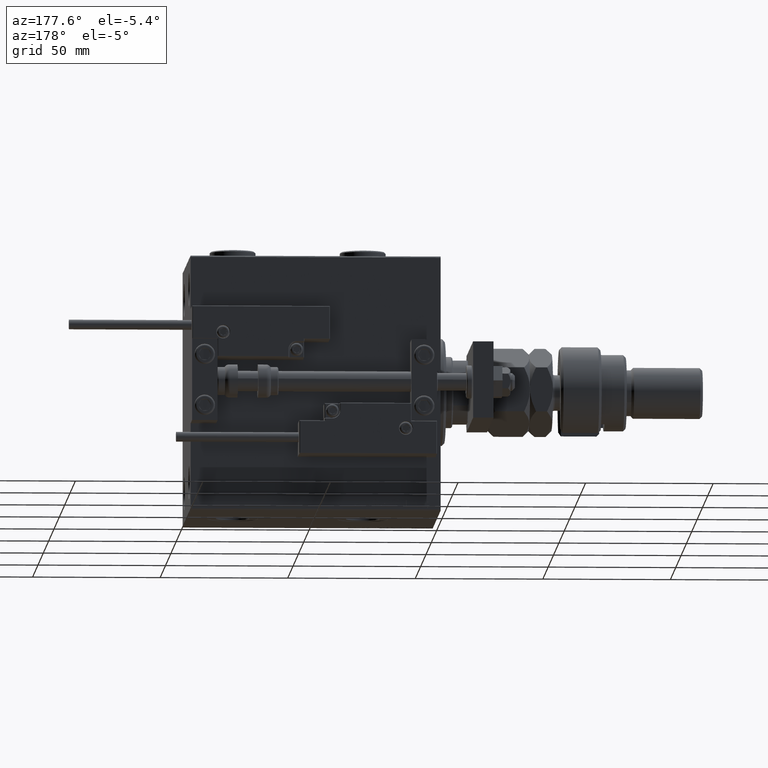
[diagram: clean part render]
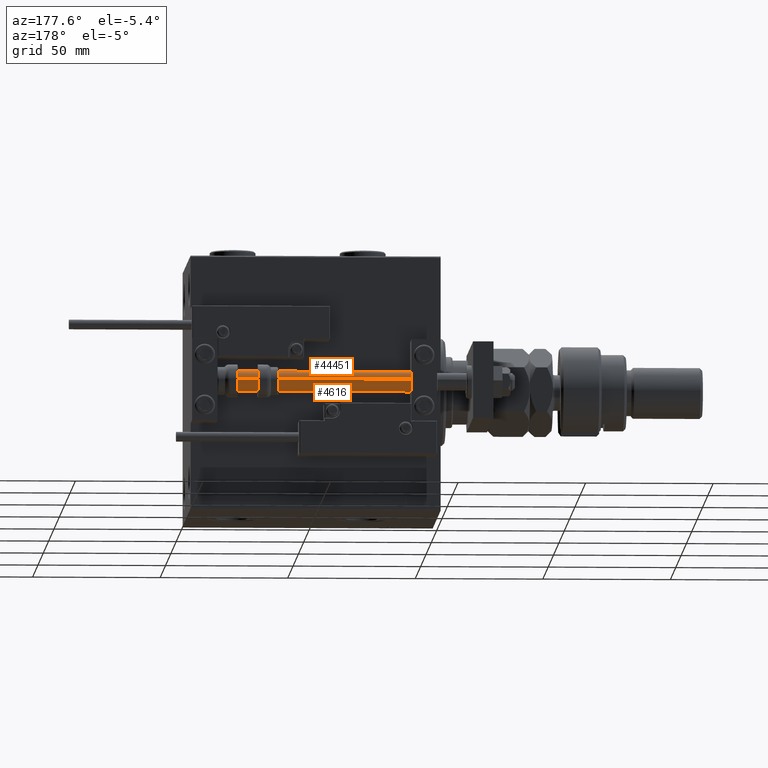
[diagram: same view with one multi-face feature highlighted, each face labeled with its STEP entity id]
A machine part, auxiliary view. The highlighted faces form ONE feature: a constant-radius fillet chain: 2 tangent blend faces with common blend radius 4 mm. The faces share edges in the B-rep.
Their STEP definitions:
[1] entity #4616 (Cylinder):
#1838 = EDGE_CURVE ( 'NONE', #5851, #43501, #13634, .T. ) ;
#2324 = DIRECTION ( 'NONE',  ( -0.000000000000000000, -0.000000000000000000, -1.000000000000000000 ) ) ;
#3189 = CIRCLE ( 'NONE', #41754, 4.000000000000000000 ) ;
#4616 = ADVANCED_FACE ( 'NONE', ( #15532 ), #36310, .T. ) ;
#5851 = VERTEX_POINT ( 'NONE', #10067 ) ;
#9667 = CARTESIAN_POINT ( 'NONE',  ( 4.000000000000000000, 4.898587196589412829E-16, 2.000000000000029310 ) ) ;
#10067 = CARTESIAN_POINT ( 'NONE',  ( -4.000000000000000000, 0.000000000000000000, 2.000000000000029310 ) ) ;
#13222 = EDGE_CURVE ( 'NONE', #53894, #55500, #3189, .T. ) ;
#13634 = CIRCLE ( 'NONE', #46686, 4.000000000000000000 ) ;
#14334 = ORIENTED_EDGE ( 'NONE', *, *, #1838, .T. ) ;
#14993 = DIRECTION ( 'NONE',  ( -0.000000000000000000, -0.000000000000000000, -1.000000000000000000 ) ) ;
#15532 = FACE_OUTER_BOUND ( 'NONE', #25840, .T. ) ;
#18226 = CARTESIAN_POINT ( 'NONE',  ( -4.000000000000000000, 0.000000000000000000, 98.00000000000000000 ) ) ;
#19456 = DIRECTION ( 'NONE',  ( -1.000000000000000000, 0.000000000000000000, 0.000000000000000000 ) ) ;
#22715 = DIRECTION ( 'NONE',  ( -0.000000000000000000, -0.000000000000000000, -1.000000000000000000 ) ) ;
#22953 = DIRECTION ( 'NONE',  ( 1.000000000000000000, 0.000000000000000000, 0.000000000000000000 ) ) ;
#25528 = DIRECTION ( 'NONE',  ( -0.000000000000000000, -0.000000000000000000, 1.000000000000000000 ) ) ;
#25840 = EDGE_LOOP ( 'NONE', ( #26959, #31977, #37635, #14334 ) ) ;
#26959 = ORIENTED_EDGE ( 'NONE', *, *, #28020, .F. ) ;
#27159 = DIRECTION ( 'NONE',  ( 0.000000000000000000, 0.000000000000000000, 1.000000000000000000 ) ) ;
#28020 = EDGE_CURVE ( 'NONE', #55500, #43501, #37165, .T. ) ;
#29137 = VECTOR ( 'NONE', #22715, 1000.000000000000000 ) ;
#31977 = ORIENTED_EDGE ( 'NONE', *, *, #13222, .F. ) ;
#36310 = CYLINDRICAL_SURFACE ( 'NONE', #48606, 4.000000000000000000 ) ;
#36894 = VECTOR ( 'NONE', #14993, 1000.000000000000000 ) ;
#37165 = LINE ( 'NONE', #50079, #36894 ) ;
#37635 = ORIENTED_EDGE ( 'NONE', *, *, #39859, .T. ) ;
#38093 = CARTESIAN_POINT ( 'NONE',  ( 4.000000000000000000, 4.898587196589412829E-16, 98.00000000000000000 ) ) ;
#38459 = CARTESIAN_POINT ( 'NONE',  ( 0.000000000000000000, 0.000000000000000000, 2.000000000000029310 ) ) ;
#39024 = LINE ( 'NONE', #18226, #29137 ) ;
#39859 = EDGE_CURVE ( 'NONE', #53894, #5851, #39024, .T. ) ;
#41109 = CARTESIAN_POINT ( 'NONE',  ( -4.000000000000000000, 0.000000000000000000, 98.00000000000000000 ) ) ;
#41754 = AXIS2_PLACEMENT_3D ( 'NONE', #48507, #27159, #22953 ) ;
#42392 = DIRECTION ( 'NONE',  ( 1.000000000000000000, 0.000000000000000000, 0.000000000000000000 ) ) ;
#43501 = VERTEX_POINT ( 'NONE', #9667 ) ;
#46686 = AXIS2_PLACEMENT_3D ( 'NONE', #38459, #25528, #42392 ) ;
#48507 = CARTESIAN_POINT ( 'NONE',  ( 0.000000000000000000, 0.000000000000000000, 98.00000000000000000 ) ) ;
#48606 = AXIS2_PLACEMENT_3D ( 'NONE', #53433, #2324, #19456 ) ;
#50079 = CARTESIAN_POINT ( 'NONE',  ( 4.000000000000000000, 4.898587196589412829E-16, 98.00000000000000000 ) ) ;
#53433 = CARTESIAN_POINT ( 'NONE',  ( 0.000000000000000000, 0.000000000000000000, 98.00000000000000000 ) ) ;
#53894 = VERTEX_POINT ( 'NONE', #41109 ) ;
#55500 = VERTEX_POINT ( 'NONE', #38093 ) ;
[2] entity #44451 (Cylinder):
#1220 = CYLINDRICAL_SURFACE ( 'NONE', #4242, 4.000000000000000000 ) ;
#4242 = AXIS2_PLACEMENT_3D ( 'NONE', #30986, #35208, #31821 ) ;
#4402 = AXIS2_PLACEMENT_3D ( 'NONE', #46120, #28985, #20013 ) ;
#5851 = VERTEX_POINT ( 'NONE', #10067 ) ;
#9667 = CARTESIAN_POINT ( 'NONE',  ( 4.000000000000000000, 4.898587196589412829E-16, 2.000000000000029310 ) ) ;
#9789 = CIRCLE ( 'NONE', #4402, 4.000000000000000000 ) ;
#10067 = CARTESIAN_POINT ( 'NONE',  ( -4.000000000000000000, 0.000000000000000000, 2.000000000000029310 ) ) ;
#10227 = EDGE_CURVE ( 'NONE', #55500, #53894, #44313, .T. ) ;
#14993 = DIRECTION ( 'NONE',  ( -0.000000000000000000, -0.000000000000000000, -1.000000000000000000 ) ) ;
#16237 = ORIENTED_EDGE ( 'NONE', *, *, #10227, .F. ) ;
#18226 = CARTESIAN_POINT ( 'NONE',  ( -4.000000000000000000, 0.000000000000000000, 98.00000000000000000 ) ) ;
#20013 = DIRECTION ( 'NONE',  ( 1.000000000000000000, 0.000000000000000000, 0.000000000000000000 ) ) ;
#22715 = DIRECTION ( 'NONE',  ( -0.000000000000000000, -0.000000000000000000, -1.000000000000000000 ) ) ;
#24952 = ORIENTED_EDGE ( 'NONE', *, *, #28020, .T. ) ;
#28020 = EDGE_CURVE ( 'NONE', #55500, #43501, #37165, .T. ) ;
#28985 = DIRECTION ( 'NONE',  ( -0.000000000000000000, -0.000000000000000000, 1.000000000000000000 ) ) ;
#29081 = AXIS2_PLACEMENT_3D ( 'NONE', #40588, #52953, #54060 ) ;
#29137 = VECTOR ( 'NONE', #22715, 1000.000000000000000 ) ;
#29674 = ORIENTED_EDGE ( 'NONE', *, *, #39859, .F. ) ;
#30986 = CARTESIAN_POINT ( 'NONE',  ( 0.000000000000000000, 0.000000000000000000, 98.00000000000000000 ) ) ;
#31315 = EDGE_LOOP ( 'NONE', ( #16237, #24952, #51137, #29674 ) ) ;
#31821 = DIRECTION ( 'NONE',  ( -1.000000000000000000, 0.000000000000000000, 0.000000000000000000 ) ) ;
#35208 = DIRECTION ( 'NONE',  ( -0.000000000000000000, -0.000000000000000000, -1.000000000000000000 ) ) ;
#36894 = VECTOR ( 'NONE', #14993, 1000.000000000000000 ) ;
#37165 = LINE ( 'NONE', #50079, #36894 ) ;
#38093 = CARTESIAN_POINT ( 'NONE',  ( 4.000000000000000000, 4.898587196589412829E-16, 98.00000000000000000 ) ) ;
#39024 = LINE ( 'NONE', #18226, #29137 ) ;
#39859 = EDGE_CURVE ( 'NONE', #53894, #5851, #39024, .T. ) ;
#40532 = FACE_OUTER_BOUND ( 'NONE', #31315, .T. ) ;
#40588 = CARTESIAN_POINT ( 'NONE',  ( 0.000000000000000000, 0.000000000000000000, 98.00000000000000000 ) ) ;
#41109 = CARTESIAN_POINT ( 'NONE',  ( -4.000000000000000000, 0.000000000000000000, 98.00000000000000000 ) ) ;
#43501 = VERTEX_POINT ( 'NONE', #9667 ) ;
#44313 = CIRCLE ( 'NONE', #29081, 4.000000000000000000 ) ;
#44451 = ADVANCED_FACE ( 'NONE', ( #40532 ), #1220, .T. ) ;
#46120 = CARTESIAN_POINT ( 'NONE',  ( 0.000000000000000000, 0.000000000000000000, 2.000000000000029310 ) ) ;
#48094 = EDGE_CURVE ( 'NONE', #43501, #5851, #9789, .T. ) ;
#50079 = CARTESIAN_POINT ( 'NONE',  ( 4.000000000000000000, 4.898587196589412829E-16, 98.00000000000000000 ) ) ;
#51137 = ORIENTED_EDGE ( 'NONE', *, *, #48094, .T. ) ;
#52953 = DIRECTION ( 'NONE',  ( 0.000000000000000000, 0.000000000000000000, 1.000000000000000000 ) ) ;
#53894 = VERTEX_POINT ( 'NONE', #41109 ) ;
#54060 = DIRECTION ( 'NONE',  ( 1.000000000000000000, 0.000000000000000000, 0.000000000000000000 ) ) ;
#55500 = VERTEX_POINT ( 'NONE', #38093 ) ;